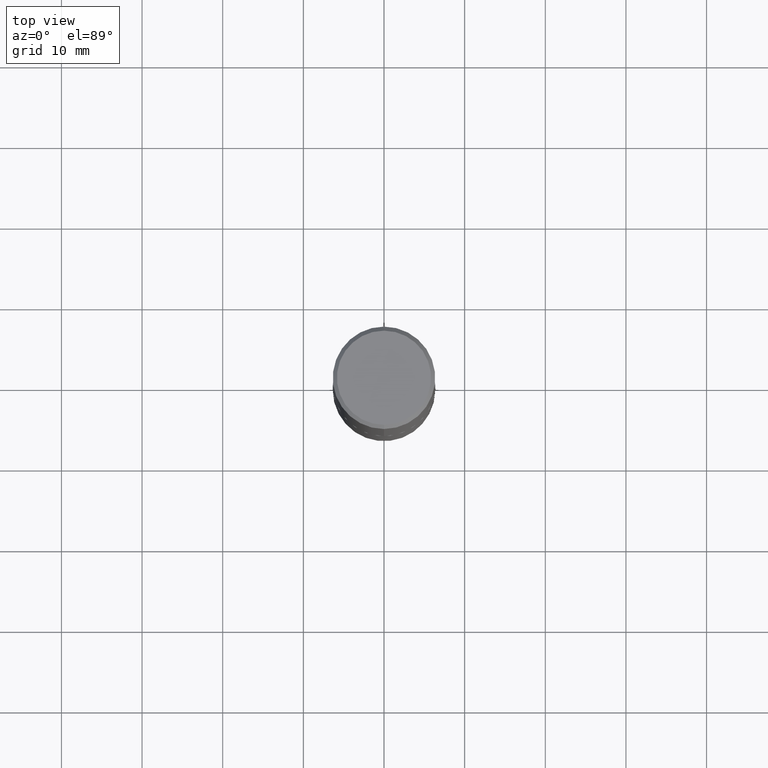
[diagram: clean part render]
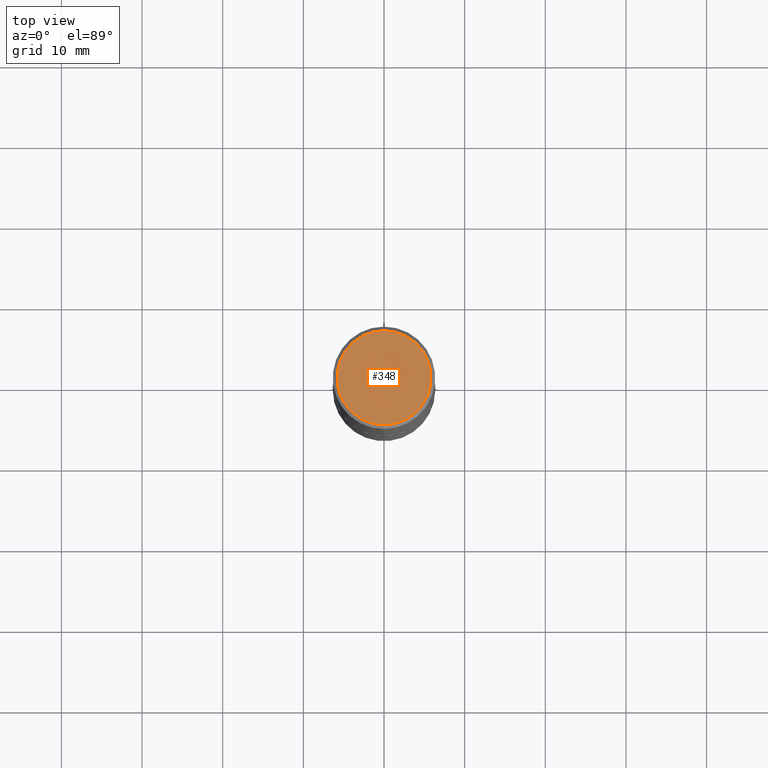
[diagram: same view with one face highlighted and labeled with its STEP entity id]
A machine part, top view. The second image highlights one B-rep face of the part: STEP entity #348.
In plain terms, the highlighted planar face has unit normal (0, -0, -1).
Its self-contained STEP definition (entity closure, byte-faithful):
#12 = ORIENTED_EDGE ( 'NONE', *, *, #325, .T. ) ;
#60 = CARTESIAN_POINT ( 'NONE',  ( 6.285415214839433991E-46, -8.971934677910720830E-32, -2.569947113611056727E-17 ) ) ;
#75 = EDGE_CURVE ( 'NONE', #353, #176, #414, .T. ) ;
#76 = PLANE ( 'NONE',  #88 ) ;
#88 = AXIS2_PLACEMENT_3D ( 'NONE', #209, #180, #296 ) ;
#89 = DIRECTION ( 'NONE',  ( -6.982962677686265922E-15, -1.000000000000000000, 3.491097007558327207E-15 ) ) ;
#108 = FACE_OUTER_BOUND ( 'NONE', #329, .T. ) ;
#116 = DIRECTION ( 'NONE',  ( -2.445737183286911680E-29, 3.491097007558327602E-15, 1.000000000000000000 ) ) ;
#176 = VERTEX_POINT ( 'NONE', #256 ) ;
#180 = DIRECTION ( 'NONE',  ( 2.445737183286911400E-29, -3.491097007558327602E-15, -1.000000000000000000 ) ) ;
#209 = CARTESIAN_POINT ( 'NONE',  ( 1.606081415867841067E-15, 0.2299999999999999822, -8.158020473064706174E-16 ) ) ;
#253 = DIRECTION ( 'NONE',  ( -2.445737183286911680E-29, 3.491097007558327602E-15, 1.000000000000000000 ) ) ;
#256 = CARTESIAN_POINT ( 'NONE',  ( -1.646519519465166968E-15, -0.2299999999999999822, 7.772528406023046093E-16 ) ) ;
#292 = CARTESIAN_POINT ( 'NONE',  ( 1.675911042644703774E-15, 0.2299999999999999822, -8.286517828745257562E-16 ) ) ;
#296 = DIRECTION ( 'NONE',  ( 6.982962677686265922E-15, 1.000000000000000000, -3.491097007558327602E-15 ) ) ;
#319 = ORIENTED_EDGE ( 'NONE', *, *, #75, .T. ) ;
#323 = AXIS2_PLACEMENT_3D ( 'NONE', #60, #253, #89 ) ;
#325 = EDGE_CURVE ( 'NONE', #176, #353, #391, .T. ) ;
#328 = CARTESIAN_POINT ( 'NONE',  ( 6.285415214839433991E-46, -8.971934677910720830E-32, -2.569947113611056727E-17 ) ) ;
#329 = EDGE_LOOP ( 'NONE', ( #319, #12 ) ) ;
#348 = ADVANCED_FACE ( 'NONE', ( #108 ), #76, .F. ) ;
#353 = VERTEX_POINT ( 'NONE', #292 ) ;
#362 = AXIS2_PLACEMENT_3D ( 'NONE', #328, #116, #371 ) ;
#371 = DIRECTION ( 'NONE',  ( -6.982962677686265922E-15, -1.000000000000000000, 3.491097007558327207E-15 ) ) ;
#391 = CIRCLE ( 'NONE', #362, 0.2299999999999999822 ) ;
#414 = CIRCLE ( 'NONE', #323, 0.2299999999999999822 ) ;